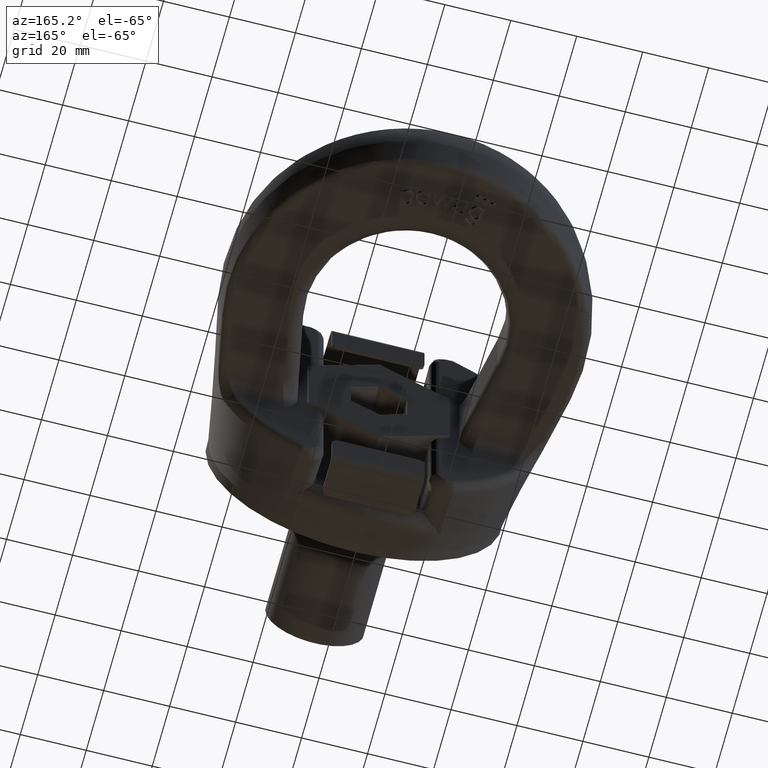
[diagram: clean part render]
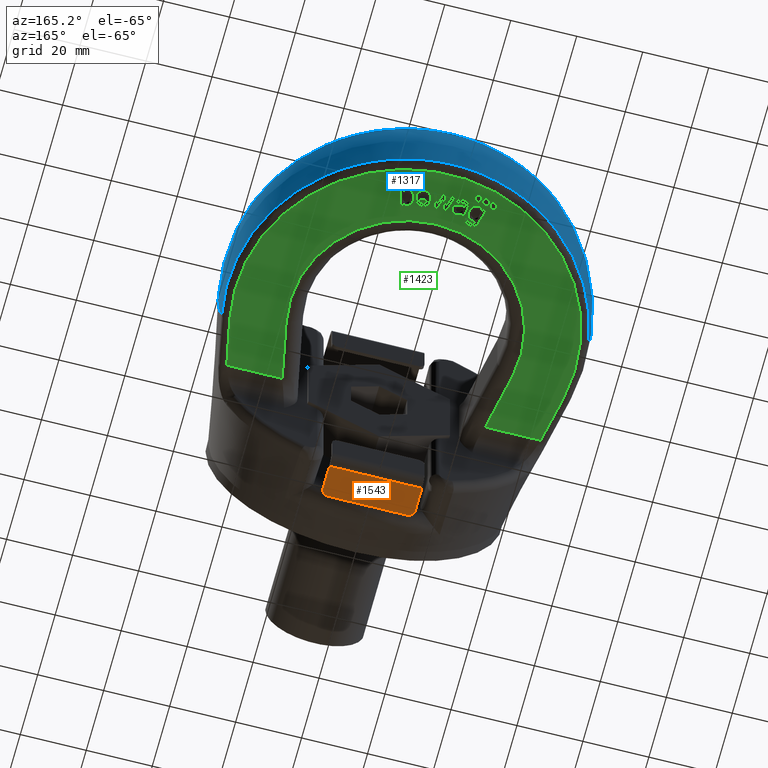
[diagram: same view with three faces highlighted in distinct colors, each labeled with its STEP entity id]
A machine part, auxiliary view with three faces highlighted in distinct colors.
Their STEP definitions:

[orange] entity #1543 — the highlighted planar face has unit normal (-0, 0, 1).
#1304=FACE_OUTER_BOUND('',#2081,.T.);
#1543=ADVANCED_FACE('',(#1304),#1665,.F.);
#1665=PLANE('',#5377);
#1754=CIRCLE('',#5375,2.);
#1755=CIRCLE('',#5376,2.);
#2081=EDGE_LOOP('',(#3856,#3857,#3858,#3859,#3860,#3861));
#2342=LINE('',#9556,#2678);
#2350=LINE('',#9578,#2686);
#2354=LINE('',#9587,#2690);
#2365=LINE('',#9621,#2701);
#2678=VECTOR('',#6174,1.);
#2686=VECTOR('',#6188,1.);
#2690=VECTOR('',#6194,1.);
#2701=VECTOR('',#6233,1.);
#3856=ORIENTED_EDGE('',*,*,#4828,.F.);
#3857=ORIENTED_EDGE('',*,*,#4852,.T.);
#3858=ORIENTED_EDGE('',*,*,#4818,.F.);
#3859=ORIENTED_EDGE('',*,*,#4851,.T.);
#3860=ORIENTED_EDGE('',*,*,#4832,.T.);
#3861=ORIENTED_EDGE('',*,*,#4853,.T.);
#4242=VERTEX_POINT('',#9557);
#4243=VERTEX_POINT('',#9558);
#4252=VERTEX_POINT('',#9577);
#4253=VERTEX_POINT('',#9579);
#4256=VERTEX_POINT('',#9586);
#4257=VERTEX_POINT('',#9588);
#4818=EDGE_CURVE('',#4242,#4243,#2342,.T.);
#4828=EDGE_CURVE('',#4252,#4253,#2350,.T.);
#4832=EDGE_CURVE('',#4257,#4256,#2354,.T.);
#4851=EDGE_CURVE('',#4242,#4257,#2365,.T.);
#4852=EDGE_CURVE('',#4252,#4243,#1754,.T.);
#4853=EDGE_CURVE('',#4256,#4253,#1755,.T.);
#5375=AXIS2_PLACEMENT_3D('',#9623,#6236,#6237);
#5376=AXIS2_PLACEMENT_3D('',#9624,#6238,#6239);
#5377=AXIS2_PLACEMENT_3D('',#9625,#6240,#6241);
#6174=DIRECTION('',(0.,-1.,0.));
#6188=DIRECTION('',(1.,0.,2.34291072916505E-15));
#6194=DIRECTION('',(0.,-1.,0.));
#6233=DIRECTION('',(1.,0.,2.34291072916505E-15));
#6236=DIRECTION('',(2.34291072916505E-15,0.,-1.));
#6237=DIRECTION('',(1.,0.,3.46944695195361E-15));
#6238=DIRECTION('',(2.34291072916505E-15,0.,-1.));
#6239=DIRECTION('',(1.,0.,3.46944695195361E-15));
#6240=DIRECTION('',(-2.34291072916505E-15,0.,1.));
#6241=DIRECTION('',(1.,0.,2.34534613952064E-15));
#9556=CARTESIAN_POINT('',(-13.9999999999999,25.,-45.));
#9557=CARTESIAN_POINT('',(-13.9999999999999,25.,-45.));
#9558=CARTESIAN_POINT('',(-13.9999999999999,17.5,-45.));
#9577=CARTESIAN_POINT('',(-11.9999999999999,15.5,-45.));
#9578=CARTESIAN_POINT('',(-13.9999999999999,15.5,-45.));
#9579=CARTESIAN_POINT('',(12.0000000000001,15.5,-45.));
#9586=CARTESIAN_POINT('',(14.0000000000001,17.5,-45.));
#9587=CARTESIAN_POINT('',(14.0000000000001,25.,-45.));
#9588=CARTESIAN_POINT('',(14.0000000000001,25.,-45.));
#9621=CARTESIAN_POINT('',(-13.9999999999999,25.,-45.));
#9623=CARTESIAN_POINT('',(-11.9999999999999,17.5,-45.));
#9624=CARTESIAN_POINT('',(12.0000000000001,17.5,-45.));
#9625=CARTESIAN_POINT('',(-13.9999999999999,25.,-45.));

[blue] entity #1317 — the highlighted spherical surface has radius 55 mm.
#1089=SPHERICAL_SURFACE('',#5146,55.);
#1096=FACE_OUTER_BOUND('',#1830,.T.);
#1317=ADVANCED_FACE('',(#1096),#1089,.T.);
#1676=CIRCLE('',#5134,53.9571770009978);
#1680=CIRCLE('',#5138,53.9571770009978);
#1685=CIRCLE('',#5144,53.9930498592789);
#1686=CIRCLE('',#5145,53.9930498592789);
#1830=EDGE_LOOP('',(#2831,#2832,#2833,#2834));
#2831=ORIENTED_EDGE('',*,*,#4372,.F.);
#2832=ORIENTED_EDGE('',*,*,#4393,.T.);
#2833=ORIENTED_EDGE('',*,*,#4382,.F.);
#2834=ORIENTED_EDGE('',*,*,#4394,.T.);
#3982=VERTEX_POINT('',#6756);
#3983=VERTEX_POINT('',#6757);
#3992=VERTEX_POINT('',#6809);
#3993=VERTEX_POINT('',#6811);
#4372=EDGE_CURVE('',#3982,#3983,#1676,.T.);
#4382=EDGE_CURVE('',#3992,#3993,#1680,.T.);
#4393=EDGE_CURVE('',#3982,#3993,#1685,.T.);
#4394=EDGE_CURVE('',#3992,#3983,#1686,.T.);
#5134=AXIS2_PLACEMENT_3D('',#6755,#5481,#5482);
#5138=AXIS2_PLACEMENT_3D('',#6810,#5489,#5490);
#5144=AXIS2_PLACEMENT_3D('',#6866,#5501,#5502);
#5145=AXIS2_PLACEMENT_3D('',#6867,#5503,#5504);
#5146=AXIS2_PLACEMENT_3D('',#6868,#5505,#5506);
#5481=DIRECTION('',(-1.11757456888336E-15,-1.,0.));
#5482=DIRECTION('',(1.,-1.15740015705436E-15,0.));
#5489=DIRECTION('',(-1.11757456888336E-15,-1.,0.));
#5490=DIRECTION('',(1.,-1.15740015705436E-15,0.));
#5501=DIRECTION('',(0.,-1.26490253456642E-16,-1.));
#5502=DIRECTION('',(0.,1.,-1.28514575894341E-16));
#5503=DIRECTION('',(-2.34291072916505E-15,-1.26490253456642E-16,1.));
#5504=DIRECTION('',(-2.85359682315669E-31,1.,1.28514575894341E-16));
#5505=DIRECTION('',(-1.05634222892599E-15,-1.,0.));
#5506=DIRECTION('',(1.,-1.13545536609391E-15,0.));
#6755=CARTESIAN_POINT('',(-7.33792883197414E-14,48.3405886615161,0.));
#6756=CARTESIAN_POINT('',(-52.9303918653886,48.3405886615161,10.4761904761905));
#6757=CARTESIAN_POINT('',(-52.9303918653884,48.340588661516,-10.4761904761906));
#6809=CARTESIAN_POINT('',(52.9303918653886,48.3405886615161,-10.4761904761904));
#6810=CARTESIAN_POINT('',(-7.33792883197414E-14,48.3405886615161,0.));
#6811=CARTESIAN_POINT('',(52.9303918653884,48.340588661516,10.4761904761905));
#6866=CARTESIAN_POINT('',(-1.38050658413677E-30,59.,10.4761904761905));
#6867=CARTESIAN_POINT('',(2.45447790674434E-14,59.,-10.4761904761905));
#6868=CARTESIAN_POINT('',(-1.38050658413677E-30,59.,0.));

[green] entity #1423 — the highlighted planar face has unit normal (-0, -0, 1).
#1423=ADVANCED_FACE('',(#1789,#1790,#1791,#1792,#1793,#1794,#1795,#1796,
#1797),#1605,.F.);
#1605=PLANE('',#5249);
#1709=CIRCLE('',#5244,0.9375);
#1710=CIRCLE('',#5245,0.9375);
#1711=CIRCLE('',#5246,0.9375);
#1712=CIRCLE('',#5247,35.);
#1713=CIRCLE('',#5248,51.5388203202208);
#1789=FACE_BOUND('',#1946,.T.);
#1790=FACE_BOUND('',#1947,.T.);
#1791=FACE_BOUND('',#1948,.T.);
#1792=FACE_BOUND('',#1949,.T.);
#1793=FACE_BOUND('',#1950,.T.);
#1794=FACE_BOUND('',#1951,.T.);
#1795=FACE_BOUND('',#1952,.T.);
#1796=FACE_BOUND('',#1953,.T.);
#1797=FACE_BOUND('',#1954,.T.);
#1946=EDGE_LOOP('',(#3273,#3274,#3275,#3276,#3277,#3278,#3279));
#1947=EDGE_LOOP('',(#3280,#3281,#3282,#3283,#3284,#3285,#3286,#3287,#3288,
#3289,#3290,#3291,#3292,#3293,#3294));
#1948=EDGE_LOOP('',(#3295,#3296,#3297,#3298,#3299));
#1949=EDGE_LOOP('',(#3300));
#1950=EDGE_LOOP('',(#3301));
#1951=EDGE_LOOP('',(#3302));
#1952=EDGE_LOOP('',(#3303,#3304,#3305,#3306,#3307,#3308,#3309,#3310));
#1953=EDGE_LOOP('',(#3311,#3312,#3313,#3314,#3315,#3316));
#1954=EDGE_LOOP('',(#3317,#3318,#3319,#3320,#3321,#3322,#3323,#3324,#3325));
#2226=LINE('',#8062,#2534);
#2227=LINE('',#8094,#2535);
#2228=LINE('',#8096,#2536);
#2229=LINE('',#8097,#2537);
#2230=LINE('',#8100,#2538);
#2231=LINE('',#8102,#2539);
#2232=LINE('',#8104,#2540);
#2233=LINE('',#8118,#2541);
#2234=LINE('',#8120,#2542);
#2235=LINE('',#8136,#2543);
#2236=LINE('',#8138,#2544);
#2237=LINE('',#8140,#2545);
#2238=LINE('',#8142,#2546);
#2239=LINE('',#8144,#2547);
#2240=LINE('',#8160,#2548);
#2241=LINE('',#8183,#2549);
#2242=LINE('',#8193,#2550);
#2243=LINE('',#8195,#2551);
#2244=LINE('',#8209,#2552);
#2245=LINE('',#8211,#2553);
#2246=LINE('',#8212,#2554);
#2247=LINE('',#8215,#2555);
#2248=LINE('',#8217,#2556);
#2249=LINE('',#8219,#2557);
#2250=LINE('',#8221,#2558);
#2251=LINE('',#8245,#2559);
#2252=LINE('',#8290,#2560);
#2534=VECTOR('',#5806,1.);
#2535=VECTOR('',#5807,1.);
#2536=VECTOR('',#5808,1.);
#2537=VECTOR('',#5809,1.);
#2538=VECTOR('',#5810,1.);
#2539=VECTOR('',#5811,1.);
#2540=VECTOR('',#5812,1.);
#2541=VECTOR('',#5813,1.);
#2542=VECTOR('',#5814,1.);
#2543=VECTOR('',#5815,1.);
#2544=VECTOR('',#5816,1.);
#2545=VECTOR('',#5817,1.);
#2546=VECTOR('',#5818,1.);
#2547=VECTOR('',#5819,1.);
#2548=VECTOR('',#5820,1.);
#2549=VECTOR('',#5821,1.);
#2550=VECTOR('',#5830,1.);
#2551=VECTOR('',#5831,1.);
#2552=VECTOR('',#5834,1.);
#2553=VECTOR('',#5835,1.);
#2554=VECTOR('',#5836,1.);
#2555=VECTOR('',#5837,1.);
#2556=VECTOR('',#5838,1.);
#2557=VECTOR('',#5839,1.);
#2558=VECTOR('',#5840,1.);
#2559=VECTOR('',#5841,1.);
#2560=VECTOR('',#5842,1.);
#3273=ORIENTED_EDGE('',*,*,#4570,.T.);
#3274=ORIENTED_EDGE('',*,*,#4571,.T.);
#3275=ORIENTED_EDGE('',*,*,#4572,.T.);
#3276=ORIENTED_EDGE('',*,*,#4573,.T.);
#3277=ORIENTED_EDGE('',*,*,#4574,.T.);
#3278=ORIENTED_EDGE('',*,*,#4575,.T.);
#3279=ORIENTED_EDGE('',*,*,#4576,.T.);
#3280=ORIENTED_EDGE('',*,*,#4577,.T.);
#3281=ORIENTED_EDGE('',*,*,#4578,.T.);
#3282=ORIENTED_EDGE('',*,*,#4579,.T.);
#3283=ORIENTED_EDGE('',*,*,#4580,.T.);
#3284=ORIENTED_EDGE('',*,*,#4581,.T.);
#3285=ORIENTED_EDGE('',*,*,#4582,.T.);
#3286=ORIENTED_EDGE('',*,*,#4583,.T.);
#3287=ORIENTED_EDGE('',*,*,#4584,.T.);
#3288=ORIENTED_EDGE('',*,*,#4585,.T.);
#3289=ORIENTED_EDGE('',*,*,#4586,.T.);
#3290=ORIENTED_EDGE('',*,*,#4587,.T.);
#3291=ORIENTED_EDGE('',*,*,#4588,.T.);
#3292=ORIENTED_EDGE('',*,*,#4589,.T.);
#3293=ORIENTED_EDGE('',*,*,#4590,.T.);
#3294=ORIENTED_EDGE('',*,*,#4591,.T.);
#3295=ORIENTED_EDGE('',*,*,#4592,.T.);
#3296=ORIENTED_EDGE('',*,*,#4593,.T.);
#3297=ORIENTED_EDGE('',*,*,#4594,.T.);
#3298=ORIENTED_EDGE('',*,*,#4595,.T.);
#3299=ORIENTED_EDGE('',*,*,#4596,.T.);
#3300=ORIENTED_EDGE('',*,*,#4597,.F.);
#3301=ORIENTED_EDGE('',*,*,#4598,.F.);
#3302=ORIENTED_EDGE('',*,*,#4599,.F.);
#3303=ORIENTED_EDGE('',*,*,#4600,.T.);
#3304=ORIENTED_EDGE('',*,*,#4601,.T.);
#3305=ORIENTED_EDGE('',*,*,#4602,.T.);
#3306=ORIENTED_EDGE('',*,*,#4603,.T.);
#3307=ORIENTED_EDGE('',*,*,#4604,.T.);
#3308=ORIENTED_EDGE('',*,*,#4605,.T.);
#3309=ORIENTED_EDGE('',*,*,#4606,.T.);
#3310=ORIENTED_EDGE('',*,*,#4607,.T.);
#3311=ORIENTED_EDGE('',*,*,#4608,.T.);
#3312=ORIENTED_EDGE('',*,*,#4609,.T.);
#3313=ORIENTED_EDGE('',*,*,#4610,.T.);
#3314=ORIENTED_EDGE('',*,*,#4611,.T.);
#3315=ORIENTED_EDGE('',*,*,#4612,.T.);
#3316=ORIENTED_EDGE('',*,*,#4613,.T.);
#3317=ORIENTED_EDGE('',*,*,#4614,.T.);
#3318=ORIENTED_EDGE('',*,*,#4615,.T.);
#3319=ORIENTED_EDGE('',*,*,#4616,.T.);
#3320=ORIENTED_EDGE('',*,*,#4617,.T.);
#3321=ORIENTED_EDGE('',*,*,#4618,.T.);
#3322=ORIENTED_EDGE('',*,*,#4619,.T.);
#3323=ORIENTED_EDGE('',*,*,#4620,.T.);
#3324=ORIENTED_EDGE('',*,*,#4621,.T.);
#3325=ORIENTED_EDGE('',*,*,#4622,.T.);
#4087=VERTEX_POINT('',#8055);
#4088=VERTEX_POINT('',#8056);
#4089=VERTEX_POINT('',#8061);
#4090=VERTEX_POINT('',#8063);
#4091=VERTEX_POINT('',#8076);
#4092=VERTEX_POINT('',#8093);
#4093=VERTEX_POINT('',#8095);
#4094=VERTEX_POINT('',#8098);
#4095=VERTEX_POINT('',#8099);
#4096=VERTEX_POINT('',#8101);
#4097=VERTEX_POINT('',#8103);
#4098=VERTEX_POINT('',#8105);
#4099=VERTEX_POINT('',#8112);
#4100=VERTEX_POINT('',#8117);
#4101=VERTEX_POINT('',#8119);
#4102=VERTEX_POINT('',#8121);
#4103=VERTEX_POINT('',#8128);
#4104=VERTEX_POINT('',#8135);
#4105=VERTEX_POINT('',#8137);
#4106=VERTEX_POINT('',#8139);
#4107=VERTEX_POINT('',#8141);
#4108=VERTEX_POINT('',#8143);
#4109=VERTEX_POINT('',#8153);
#4110=VERTEX_POINT('',#8154);
#4111=VERTEX_POINT('',#8159);
#4112=VERTEX_POINT('',#8161);
#4113=VERTEX_POINT('',#8182);
#4114=VERTEX_POINT('',#8185);
#4115=VERTEX_POINT('',#8187);
#4116=VERTEX_POINT('',#8189);
#4117=VERTEX_POINT('',#8191);
#4118=VERTEX_POINT('',#8192);
#4119=VERTEX_POINT('',#8194);
#4120=VERTEX_POINT('',#8196);
#4121=VERTEX_POINT('',#8201);
#4122=VERTEX_POINT('',#8203);
#4123=VERTEX_POINT('',#8208);
#4124=VERTEX_POINT('',#8210);
#4125=VERTEX_POINT('',#8213);
#4126=VERTEX_POINT('',#8214);
#4127=VERTEX_POINT('',#8216);
#4128=VERTEX_POINT('',#8218);
#4129=VERTEX_POINT('',#8220);
#4130=VERTEX_POINT('',#8222);
#4131=VERTEX_POINT('',#8246);
#4132=VERTEX_POINT('',#8247);
#4133=VERTEX_POINT('',#8252);
#4134=VERTEX_POINT('',#8269);
#4135=VERTEX_POINT('',#8276);
#4136=VERTEX_POINT('',#8289);
#4137=VERTEX_POINT('',#8291);
#4138=VERTEX_POINT('',#8296);
#4139=VERTEX_POINT('',#8309);
#4570=EDGE_CURVE('',#4087,#4088,#4995,.T.);
#4571=EDGE_CURVE('',#4088,#4089,#4996,.T.);
#4572=EDGE_CURVE('',#4089,#4090,#2226,.T.);
#4573=EDGE_CURVE('',#4090,#4091,#4997,.T.);
#4574=EDGE_CURVE('',#4091,#4092,#4998,.T.);
#4575=EDGE_CURVE('',#4092,#4093,#2227,.T.);
#4576=EDGE_CURVE('',#4093,#4087,#2228,.T.);
#4577=EDGE_CURVE('',#4094,#4095,#2229,.T.);
#4578=EDGE_CURVE('',#4095,#4096,#2230,.T.);
#4579=EDGE_CURVE('',#4096,#4097,#2231,.T.);
#4580=EDGE_CURVE('',#4097,#4098,#2232,.T.);
#4581=EDGE_CURVE('',#4098,#4099,#4999,.T.);
#4582=EDGE_CURVE('',#4099,#4100,#5000,.T.);
#4583=EDGE_CURVE('',#4100,#4101,#2233,.T.);
#4584=EDGE_CURVE('',#4101,#4102,#2234,.T.);
#4585=EDGE_CURVE('',#4102,#4103,#5001,.T.);
#4586=EDGE_CURVE('',#4103,#4104,#5002,.T.);
#4587=EDGE_CURVE('',#4104,#4105,#2235,.T.);
#4588=EDGE_CURVE('',#4105,#4106,#2236,.T.);
#4589=EDGE_CURVE('',#4106,#4107,#2237,.T.);
#4590=EDGE_CURVE('',#4107,#4108,#2238,.T.);
#4591=EDGE_CURVE('',#4108,#4094,#2239,.T.);
#4592=EDGE_CURVE('',#4109,#4110,#5003,.T.);
#4593=EDGE_CURVE('',#4110,#4111,#5004,.T.);
#4594=EDGE_CURVE('',#4111,#4112,#2240,.T.);
#4595=EDGE_CURVE('',#4112,#4113,#5005,.T.);
#4596=EDGE_CURVE('',#4113,#4109,#2241,.T.);
#4597=EDGE_CURVE('',#4114,#4114,#1709,.T.);
#4598=EDGE_CURVE('',#4115,#4115,#1710,.T.);
#4599=EDGE_CURVE('',#4116,#4116,#1711,.T.);
#4600=EDGE_CURVE('',#4117,#4118,#1712,.T.);
#4601=EDGE_CURVE('',#4118,#4119,#2242,.T.);
#4602=EDGE_CURVE('',#4119,#4120,#2243,.T.);
#4603=EDGE_CURVE('',#4120,#4121,#5006,.T.);
#4604=EDGE_CURVE('',#4121,#4122,#1713,.T.);
#4605=EDGE_CURVE('',#4122,#4123,#5007,.T.);
#4606=EDGE_CURVE('',#4123,#4124,#2244,.T.);
#4607=EDGE_CURVE('',#4124,#4117,#2245,.T.);
#4608=EDGE_CURVE('',#4125,#4126,#2246,.T.);
#4609=EDGE_CURVE('',#4126,#4127,#2247,.T.);
#4610=EDGE_CURVE('',#4127,#4128,#2248,.T.);
#4611=EDGE_CURVE('',#4128,#4129,#2249,.T.);
#4612=EDGE_CURVE('',#4129,#4130,#2250,.T.);
#4613=EDGE_CURVE('',#4130,#4125,#5008,.T.);
#4614=EDGE_CURVE('',#4131,#4132,#2251,.T.);
#4615=EDGE_CURVE('',#4132,#4133,#5009,.T.);
#4616=EDGE_CURVE('',#4133,#4134,#5010,.T.);
#4617=EDGE_CURVE('',#4134,#4135,#5011,.T.);
#4618=EDGE_CURVE('',#4135,#4136,#5012,.T.);
#4619=EDGE_CURVE('',#4136,#4137,#2252,.T.);
#4620=EDGE_CURVE('',#4137,#4138,#5013,.T.);
#4621=EDGE_CURVE('',#4138,#4139,#5014,.T.);
#4622=EDGE_CURVE('',#4139,#4131,#5015,.T.);
#4995=B_SPLINE_CURVE_WITH_KNOTS('',3,(#8043,#8044,#8045,#8046,#8047,#8048,
#8049,#8050,#8051,#8052,#8053,#8054),.UNSPECIFIED.,.F.,.F.,(4,2,2,2,2,4),
(0.,0.305645754892095,0.470829306249219,0.636012857606339,0.802206343843957,
1.),.UNSPECIFIED.);
#4996=B_SPLINE_CURVE_WITH_KNOTS('',3,(#8057,#8058,#8059,#8060),
 .UNSPECIFIED.,.F.,.F.,(4,4),(0.,1.),.UNSPECIFIED.);
#4997=B_SPLINE_CURVE_WITH_KNOTS('',3,(#8064,#8065,#8066,#8067,#8068,#8069,
#8070,#8071,#8072,#8073,#8074,#8075),.UNSPECIFIED.,.F.,.F.,(4,2,2,2,2,4),
(0.,0.163304651309281,0.382303784248523,0.619375661168188,0.856447538087858,
1.),.UNSPECIFIED.);
#4998=B_SPLINE_CURVE_WITH_KNOTS('',3,(#8077,#8078,#8079,#8080,#8081,#8082,
#8083,#8084,#8085,#8086,#8087,#8088,#8089,#8090,#8091,#8092),
 .UNSPECIFIED.,.F.,.F.,(4,2,2,2,2,2,2,4),(0.,0.139503666745455,0.312880428291723,
0.486257189837992,0.605370995480464,0.72385410568908,0.842337215897697,
1.),.UNSPECIFIED.);
#4999=B_SPLINE_CURVE_WITH_KNOTS('',3,(#8106,#8107,#8108,#8109,#8110,#8111),
 .UNSPECIFIED.,.F.,.F.,(4,2,4),(0.,0.728909607654957,1.),.UNSPECIFIED.);
#5000=B_SPLINE_CURVE_WITH_KNOTS('',3,(#8113,#8114,#8115,#8116),
 .UNSPECIFIED.,.F.,.F.,(4,4),(0.,1.),.UNSPECIFIED.);
#5001=B_SPLINE_CURVE_WITH_KNOTS('',3,(#8122,#8123,#8124,#8125,#8126,#8127),
 .UNSPECIFIED.,.F.,.F.,(4,2,4),(0.,0.752082276025133,1.),.UNSPECIFIED.);
#5002=B_SPLINE_CURVE_WITH_KNOTS('',3,(#8129,#8130,#8131,#8132,#8133,#8134),
 .UNSPECIFIED.,.F.,.F.,(4,2,4),(0.,0.250451922487265,1.),.UNSPECIFIED.);
#5003=B_SPLINE_CURVE_WITH_KNOTS('',3,(#8145,#8146,#8147,#8148,#8149,#8150,
#8151,#8152),.UNSPECIFIED.,.F.,.F.,(4,2,2,4),(0.,0.363477968613222,0.728087675912445,
1.),.UNSPECIFIED.);
#5004=B_SPLINE_CURVE_WITH_KNOTS('',3,(#8155,#8156,#8157,#8158),
 .UNSPECIFIED.,.F.,.F.,(4,4),(0.,1.),.UNSPECIFIED.);
#5005=B_SPLINE_CURVE_WITH_KNOTS('',3,(#8162,#8163,#8164,#8165,#8166,#8167,
#8168,#8169,#8170,#8171,#8172,#8173,#8174,#8175,#8176,#8177,#8178,#8179,
#8180,#8181),.UNSPECIFIED.,.F.,.F.,(4,2,2,2,2,2,2,2,2,4),(0.,0.102921203122037,
0.206156274885321,0.336063021724224,0.465707475917722,0.59957029629973,
0.733433116681741,0.862845255056165,0.992257393430591,1.),.UNSPECIFIED.);
#5006=B_SPLINE_CURVE_WITH_KNOTS('',3,(#8197,#8198,#8199,#8200),
 .UNSPECIFIED.,.F.,.F.,(4,4),(0.,1.),.UNSPECIFIED.);
#5007=B_SPLINE_CURVE_WITH_KNOTS('',3,(#8204,#8205,#8206,#8207),
 .UNSPECIFIED.,.F.,.F.,(4,4),(0.,1.),.UNSPECIFIED.);
#5008=B_SPLINE_CURVE_WITH_KNOTS('',3,(#8223,#8224,#8225,#8226,#8227,#8228,
#8229,#8230,#8231,#8232,#8233,#8234,#8235,#8236,#8237,#8238,#8239,#8240,
#8241,#8242,#8243,#8244),.UNSPECIFIED.,.F.,.F.,(4,2,2,2,2,2,2,2,2,2,4),
(0.,0.0830854503763883,0.165678296755073,0.273272220956495,0.380460889370519,
0.487248686046679,0.601946689884037,0.717055250849192,0.83190951462342,
0.915821305508702,1.),.UNSPECIFIED.);
#5009=B_SPLINE_CURVE_WITH_KNOTS('',3,(#8248,#8249,#8250,#8251),
 .UNSPECIFIED.,.F.,.F.,(4,4),(0.,1.),.UNSPECIFIED.);
#5010=B_SPLINE_CURVE_WITH_KNOTS('',3,(#8253,#8254,#8255,#8256,#8257,#8258,
#8259,#8260,#8261,#8262,#8263,#8264,#8265,#8266,#8267,#8268),
 .UNSPECIFIED.,.F.,.F.,(4,2,2,2,2,2,2,4),(0.,0.121639465164563,0.24393090499119,
0.445161792748233,0.646392680505275,0.763565096161275,0.881519242448373,
1.),.UNSPECIFIED.);
#5011=B_SPLINE_CURVE_WITH_KNOTS('',3,(#8270,#8271,#8272,#8273,#8274,#8275),
 .UNSPECIFIED.,.F.,.F.,(4,2,4),(0.,0.329344693449402,1.),.UNSPECIFIED.);
#5012=B_SPLINE_CURVE_WITH_KNOTS('',3,(#8277,#8278,#8279,#8280,#8281,#8282,
#8283,#8284,#8285,#8286,#8287,#8288),.UNSPECIFIED.,.F.,.F.,(4,2,2,2,2,4),
(0.,0.0173977322142851,0.217983350684944,0.49067503531642,0.745337517658208,
1.),.UNSPECIFIED.);
#5013=B_SPLINE_CURVE_WITH_KNOTS('',3,(#8292,#8293,#8294,#8295),
 .UNSPECIFIED.,.F.,.F.,(4,4),(0.,1.),.UNSPECIFIED.);
#5014=B_SPLINE_CURVE_WITH_KNOTS('',3,(#8297,#8298,#8299,#8300,#8301,#8302,
#8303,#8304,#8305,#8306,#8307,#8308),.UNSPECIFIED.,.F.,.F.,(4,2,2,2,2,4),
(0.,0.201730292707491,0.402155128097313,0.601755169925864,0.800199545078052,
1.),.UNSPECIFIED.);
#5015=B_SPLINE_CURVE_WITH_KNOTS('',3,(#8310,#8311,#8312,#8313,#8314,#8315,
#8316,#8317,#8318,#8319),.UNSPECIFIED.,.F.,.F.,(4,2,2,2,4),(0.,0.161403604805111,
0.323059797411175,0.661780038481065,1.),.UNSPECIFIED.);
#5244=AXIS2_PLACEMENT_3D('',#8184,#5822,#5823);
#5245=AXIS2_PLACEMENT_3D('',#8186,#5824,#5825);
#5246=AXIS2_PLACEMENT_3D('',#8188,#5826,#5827);
#5247=AXIS2_PLACEMENT_3D('',#8190,#5828,#5829);
#5248=AXIS2_PLACEMENT_3D('',#8202,#5832,#5833);
#5249=AXIS2_PLACEMENT_3D('',#8320,#5843,#5844);
#5806=DIRECTION('',(-0.923317757456574,-0.384036871622196,-2.21182800160181E-15));
#5807=DIRECTION('',(-0.247367797191725,0.968921654682417,-4.57001520410008E-16));
#5808=DIRECTION('',(-0.968921654682422,-0.247367797191705,-2.30138655583959E-15));
#5809=DIRECTION('',(0.258678524178697,-0.965963467802345,4.83875725830674E-16));
#5810=DIRECTION('',(0.999999995420965,9.56978091464592E-5,2.34292282327691E-15));
#5811=DIRECTION('',(0.297316417901246,0.954779004611209,8.17356063746101E-16));
#5812=DIRECTION('',(-0.999999995420965,-9.56978091273384E-5,-2.34292282327691E-15));
#5813=DIRECTION('',(-0.266690394584402,0.963782254161393,-5.02922725231167E-16));
#5814=DIRECTION('',(-0.999999995420965,-9.56978091537465E-5,-2.34292282327691E-15));
#5815=DIRECTION('',(-0.999999995420965,-9.5697809128922E-5,-2.34292282327691E-15));
#5816=DIRECTION('',(0.303111828997476,-0.952954993229903,5.89624437668605E-16));
#5817=DIRECTION('',(0.999999995420965,9.56978091354378E-5,2.34292282327691E-15));
#5818=DIRECTION('',(0.260550789699002,0.965460142101799,7.3256853875496E-16));
#5819=DIRECTION('',(0.226099188397929,0.974104284461268,6.52944912187723E-16));
#5820=DIRECTION('',(-0.999912445157426,0.0132326119605001,-2.34103179954421E-15));
#5821=DIRECTION('',(0.991099761245478,-0.133121235192426,2.305219725515E-15));
#5822=DIRECTION('',(2.34291072916505E-15,1.26490253456642E-16,-1.));
#5823=DIRECTION('',(0.,0.999999999999994,0.));
#5824=DIRECTION('',(2.34291072916505E-15,1.26490253456642E-16,-1.));
#5825=DIRECTION('',(0.,0.999999999999994,0.));
#5826=DIRECTION('',(2.34291072916505E-15,1.26490253456642E-16,-1.));
#5827=DIRECTION('',(0.,0.999999999999994,0.));
#5828=DIRECTION('',(-2.34291072916505E-15,-1.26490253456642E-16,1.));
#5829=DIRECTION('',(-3.52170046973666E-31,1.,1.48690583655155E-16));
#5830=DIRECTION('',(0.193807478881527,-0.981039581836323,3.29981676306483E-16));
#5831=DIRECTION('',(-1.,-8.206214337158E-16,-2.34291072916505E-15));
#5832=DIRECTION('',(2.34291072916505E-15,1.26490253456642E-16,-1.));
#5833=DIRECTION('',(-2.39158590893132E-31,1.,1.34634317603595E-16));
#5834=DIRECTION('',(-1.,8.206214337158E-16,-2.34291072916505E-15));
#5835=DIRECTION('',(0.193807478881527,0.981039581836323,5.78165567021432E-16));
#5836=DIRECTION('',(-0.247182345302588,-0.968968982047781,-7.01691301000461E-16));
#5837=DIRECTION('',(0.968968982047781,-0.247182345302588,2.23894166676055E-15));
#5838=DIRECTION('',(0.247182345302589,0.96896898204778,7.01691301000463E-16));
#5839=DIRECTION('',(-0.968968982047783,0.247182345302581,-2.23894166676055E-15));
#5840=DIRECTION('',(-0.24718234530259,-0.96896898204778,-7.01691301000466E-16));
#5841=DIRECTION('',(0.991074264271357,0.133310924904859,2.33886105984047E-15));
#5842=DIRECTION('',(0.964559790778294,0.263864378068987,2.29325375479579E-15));
#5843=DIRECTION('',(-2.34291072916505E-15,-1.26490253456642E-16,1.));
#5844=DIRECTION('',(0.,1.,1.26634813746307E-16));
#8043=CARTESIAN_POINT('',(-12.9361312238876,102.083665701195,-12.5));
#8044=CARTESIAN_POINT('',(-12.6133950341517,100.819531539291,-12.5));
#8045=CARTESIAN_POINT('',(-12.2906588444157,99.5553973773881,-12.5));
#8046=CARTESIAN_POINT('',(-11.7935027286093,97.608073061809,-12.5));
#8047=CARTESIAN_POINT('',(-11.5991699822518,97.1428371525171,-12.5));
#8048=CARTESIAN_POINT('',(-11.1698878288902,96.645175454657,-12.5));
#8049=CARTESIAN_POINT('',(-10.8883084007194,96.4761401383114,-12.5));
#8050=CARTESIAN_POINT('',(-10.1907288745621,96.3033306368806,-12.5));
#8051=CARTESIAN_POINT('',(-9.79160842375197,96.3171878327676,-12.5));
#8052=CARTESIAN_POINT('',(-8.81114823436487,96.5675014428627,-12.5));
#8053=CARTESIAN_POINT('',(-8.41087639954167,96.7951037622214,-12.5));
#8054=CARTESIAN_POINT('',(-8.14312299358149,97.1142858925592,-12.5));
#8055=CARTESIAN_POINT('',(-12.9361312238876,102.083665701195,-12.5));
#8056=CARTESIAN_POINT('',(-8.14312299358149,97.1142858925592,-12.5));
#8057=CARTESIAN_POINT('',(-8.14312299358149,97.1142858925592,-12.5));
#8058=CARTESIAN_POINT('',(-7.87536958762131,97.433468022897,-12.5));
#8059=CARTESIAN_POINT('',(-7.80831113043786,97.8284745095958,-12.5));
#8060=CARTESIAN_POINT('',(-7.93997580943938,98.2981586020904,-12.5));
#8061=CARTESIAN_POINT('',(-7.93997580943938,98.2981586020904,-12.5));
#8062=CARTESIAN_POINT('',(-85.8341807000286,65.8995108753492,-12.5000000000002));
#8063=CARTESIAN_POINT('',(-8.64881891024292,98.0033284802769,-12.5));
#8064=CARTESIAN_POINT('',(-8.64881891024292,98.0033284802769,-12.5));
#8065=CARTESIAN_POINT('',(-8.62181521354581,97.7725997454393,-12.5));
#8066=CARTESIAN_POINT('',(-8.66540699770487,97.5882040164713,-12.5));
#8067=CARTESIAN_POINT('',(-8.93272469611895,97.2649927602029,-12.5));
#8068=CARTESIAN_POINT('',(-9.17150874846373,97.130613583653,-12.5));
#8069=CARTESIAN_POINT('',(-9.84774254468087,96.9579696307096,-12.5));
#8070=CARTESIAN_POINT('',(-10.134692723238,96.9573176065717,-12.5));
#8071=CARTESIAN_POINT('',(-10.5865587281034,97.1356834659449,-12.5));
#8072=CARTESIAN_POINT('',(-10.7652542921919,97.2963319252344,-12.5));
#8073=CARTESIAN_POINT('',(-10.9731475394713,97.6671551267138,-12.5));
#8074=CARTESIAN_POINT('',(-11.0729033409316,97.98181188431,-12.5));
#8075=CARTESIAN_POINT('',(-11.1935453772271,98.4675113500908,-12.5));
#8076=CARTESIAN_POINT('',(-11.1935453772271,98.4675113500908,-12.5));
#8077=CARTESIAN_POINT('',(-11.1935453772271,98.4675113500908,-12.5));
#8078=CARTESIAN_POINT('',(-10.7644353515799,98.1678247385659,-12.5));
#8079=CARTESIAN_POINT('',(-10.3043726501683,98.0823102360776,-12.5));
#8080=CARTESIAN_POINT('',(-9.19780825635845,98.3648185227122,-12.5));
#8081=CARTESIAN_POINT('',(-8.77713628976422,98.7032391897207,-12.5));
#8082=CARTESIAN_POINT('',(-8.32790804169283,99.7453172626244,-12.5));
#8083=CARTESIAN_POINT('',(-8.29253055055801,100.31045265789,-12.5));
#8084=CARTESIAN_POINT('',(-8.55475370471846,101.337561664437,-12.5));
#8085=CARTESIAN_POINT('',(-8.73047452900125,101.703589246519,-12.5));
#8086=CARTESIAN_POINT('',(-9.21927591472675,102.332568959169,-12.5));
#8087=CARTESIAN_POINT('',(-9.51244185323587,102.550151841507,-12.5));
#8088=CARTESIAN_POINT('',(-10.1969128928392,102.784644233039,-12.5));
#8089=CARTESIAN_POINT('',(-10.565463982187,102.794512332851,-12.5));
#8090=CARTESIAN_POINT('',(-11.4876009770286,102.559088760655,-12.5));
#8091=CARTESIAN_POINT('',(-11.8676903248124,102.239279717088,-12.5));
#8092=CARTESIAN_POINT('',(-12.1025647594336,101.732122787029,-12.5));
#8093=CARTESIAN_POINT('',(-12.1025647594336,101.732122787029,-12.5));
#8094=CARTESIAN_POINT('',(-23.430154944213,146.101468959013,-12.5000000000001));
#8095=CARTESIAN_POINT('',(-12.2378291918965,102.261943722533,-12.5));
#8096=CARTESIAN_POINT('',(-98.8076742476848,80.1604747635212,-12.5000000000002));
#8097=CARTESIAN_POINT('',(-12.614340635074,150.079225022869,-12.5));
#8098=CARTESIAN_POINT('',(0.0202019016882926,102.899017227667,-12.5));
#8099=CARTESIAN_POINT('',(0.952727510787347,99.4167580256719,-12.5));
#8100=CARTESIAN_POINT('',(-109.997646421499,99.406140317914,-12.5000000000003));
#8101=CARTESIAN_POINT('',(1.76778574874189,99.41683602496,-12.5));
#8102=CARTESIAN_POINT('',(-1.13369807770998,90.0992347324697,-12.5));
#8103=CARTESIAN_POINT('',(3.17784243249098,103.944983264385,-12.5));
#8104=CARTESIAN_POINT('',(-109.998079742354,103.934152576538,-12.5000000000003));
#8105=CARTESIAN_POINT('',(2.37091850828847,103.944906043533,-12.5));
#8106=CARTESIAN_POINT('',(2.37091850828847,103.944906043533,-12.5));
#8107=CARTESIAN_POINT('',(2.12643019792692,103.073496098674,-12.5));
#8108=CARTESIAN_POINT('',(1.88194188756537,102.202086153815,-12.5));
#8109=CARTESIAN_POINT('',(1.54652538626816,101.006588199463,-12.5));
#8110=CARTESIAN_POINT('',(1.45530696871548,100.682581687893,-12.5));
#8111=CARTESIAN_POINT('',(1.36423366447131,100.358534427362,-12.5));
#8112=CARTESIAN_POINT('',(1.36423366447131,100.358534427362,-12.5));
#8113=CARTESIAN_POINT('',(1.36423366447131,100.358534427362,-12.5));
#8114=CARTESIAN_POINT('',(1.35284103495516,100.406499569104,-12.5));
#8115=CARTESIAN_POINT('',(1.27309492347374,100.718272445527,-12.5));
#8116=CARTESIAN_POINT('',(1.12662234578625,101.292254337932,-12.5));
#8117=CARTESIAN_POINT('',(1.12662234578625,101.292254337932,-12.5));
#8118=CARTESIAN_POINT('',(-12.6137268410252,150.947978657762,-12.5));
#8119=CARTESIAN_POINT('',(0.392653403791994,103.944716727896,-12.5));
#8120=CARTESIAN_POINT('',(-109.998079742354,103.934152576535,-12.5000000000003));
#8121=CARTESIAN_POINT('',(-0.40938993215929,103.944639974106,-12.5));
#8122=CARTESIAN_POINT('',(-0.40938993215929,103.944639974106,-12.5));
#8123=CARTESIAN_POINT('',(-0.639236069743761,103.068967765404,-12.5));
#8124=CARTESIAN_POINT('',(-0.869082207328232,102.193295556703,-12.5));
#8125=CARTESIAN_POINT('',(-1.17469522988109,101.028965221292,-12.5));
#8126=CARTESIAN_POINT('',(-1.25288283345265,100.740947914719,-12.5));
#8127=CARTESIAN_POINT('',(-1.32986007772262,100.452610198077,-12.5));
#8128=CARTESIAN_POINT('',(-1.32986007772262,100.452610198077,-12.5));
#8129=CARTESIAN_POINT('',(-1.32986007772262,100.452610198077,-12.5));
#8130=CARTESIAN_POINT('',(-1.41773856484491,100.744129887186,-12.5));
#8131=CARTESIAN_POINT('',(-1.50561705196719,101.035649576295,-12.5));
#8132=CARTESIAN_POINT('',(-1.85649671880926,102.199624227452,-12.5));
#8133=CARTESIAN_POINT('',(-2.11968147863285,103.072023838821,-12.5));
#8134=CARTESIAN_POINT('',(-2.38277444840454,103.94445112553,-12.5));
#8135=CARTESIAN_POINT('',(-2.38277444840454,103.94445112553,-12.5));
#8136=CARTESIAN_POINT('',(-109.998079742354,103.934152576537,-12.5000000000003));
#8137=CARTESIAN_POINT('',(-3.14251935284521,103.944378419607,-12.5));
#8138=CARTESIAN_POINT('',(-18.7533457073628,153.023343672086,-12.5));
#8139=CARTESIAN_POINT('',(-1.70231249787898,99.4165039441587,-12.5));
#8140=CARTESIAN_POINT('',(-109.997646421499,99.4061403179152,-12.5000000000003));
#8141=CARTESIAN_POINT('',(-0.890507985425248,99.4165816320724,-12.5));
#8142=CARTESIAN_POINT('',(-2.11359949849102,94.8844667711958,-12.5));
#8143=CARTESIAN_POINT('',(-0.158679250626372,102.128342648454,-12.5));
#8144=CARTESIAN_POINT('',(-0.956754746446199,98.689989926756,-12.5));
#8145=CARTESIAN_POINT('',(6.98170931109626,100.927764604249,-12.5));
#8146=CARTESIAN_POINT('',(6.88649188617454,100.438838570992,-12.5));
#8147=CARTESIAN_POINT('',(6.69394525267512,100.08075145041,-12.5));
#8148=CARTESIAN_POINT('',(6.11329100018677,99.6255474660199,-12.5));
#8149=CARTESIAN_POINT('',(5.77727561379915,99.5376104362244,-12.5));
#8150=CARTESIAN_POINT('',(5.11297369795166,99.6268372679081,-12.5));
#8151=CARTESIAN_POINT('',(4.88090703448359,99.7322163901957,-12.5));
#8152=CARTESIAN_POINT('',(4.69894078345354,99.9050748883034,-12.5));
#8153=CARTESIAN_POINT('',(6.98170931109626,100.927764604249,-12.5));
#8154=CARTESIAN_POINT('',(4.69894078345354,99.9050748883034,-12.5));
#8155=CARTESIAN_POINT('',(4.69894078345354,99.9050748883034,-12.5));
#8156=CARTESIAN_POINT('',(4.51879975984843,100.07930146046,-12.5));
#8157=CARTESIAN_POINT('',(4.39046190175364,100.333684560665,-12.5));
#8158=CARTESIAN_POINT('',(4.31596528072814,100.671176906997,-12.5));
#8159=CARTESIAN_POINT('',(4.31596528072814,100.671176906997,-12.5));
#8160=CARTESIAN_POINT('',(-110.288657278836,102.187828196372,-12.5000000000003));
#8161=CARTESIAN_POINT('',(3.50323967626943,100.68193233124,-12.5));
#8162=CARTESIAN_POINT('',(3.50323967626943,100.68193233124,-12.5));
#8163=CARTESIAN_POINT('',(3.56889315737902,100.205276534542,-12.5));
#8164=CARTESIAN_POINT('',(3.75479880439991,99.8173289810347,-12.5));
#8165=CARTESIAN_POINT('',(4.3680480895477,99.2179377997937,-12.5));
#8166=CARTESIAN_POINT('',(4.78704277137305,99.0333883735846,-12.5));
#8167=CARTESIAN_POINT('',(5.98504355650578,98.8724768785823,-12.5));
#8168=CARTESIAN_POINT('',(6.54093648094111,99.0026917168349,-12.5));
#8169=CARTESIAN_POINT('',(7.43262984529027,99.7080636270627,-12.5));
#8170=CARTESIAN_POINT('',(7.7044018468571,100.246704755909,-12.5));
#8171=CARTESIAN_POINT('',(7.90383680045025,101.731516210704,-12.5));
#8172=CARTESIAN_POINT('',(7.78426598526442,102.344472608802,-12.5));
#8173=CARTESIAN_POINT('',(7.10615418723108,103.284114657953,-12.5));
#8174=CARTESIAN_POINT('',(6.6198993431295,103.562373493289,-12.5));
#8175=CARTESIAN_POINT('',(5.37997659243357,103.728915807766,-12.5));
#8176=CARTESIAN_POINT('',(4.85268087896622,103.59163342182,-12.5));
#8177=CARTESIAN_POINT('',(3.96890932617471,102.877910693375,-12.5));
#8178=CARTESIAN_POINT('',(3.6983737547461,102.330257952601,-12.5));
#8179=CARTESIAN_POINT('',(3.59280306426349,101.544274514417,-12.5));
#8180=CARTESIAN_POINT('',(3.58526314979077,101.475918251207,-12.5));
#8181=CARTESIAN_POINT('',(3.57635580073242,101.385160401618,-12.5));
#8182=CARTESIAN_POINT('',(3.57635580073242,101.385160401618,-12.5));
#8183=CARTESIAN_POINT('',(-110.97100457419,116.770782210243,-12.5000000000003));
#8184=CARTESIAN_POINT('',(-9.98173198853295,105.439369359511,-12.5));
#8185=CARTESIAN_POINT('',(-9.98173198853295,106.376869359511,-12.5));
#8186=CARTESIAN_POINT('',(-12.3508778408696,104.866172900733,-12.5));
#8187=CARTESIAN_POINT('',(-12.3508778408696,105.803672900733,-12.5));
#8188=CARTESIAN_POINT('',(-14.6875,104.172196578759,-12.5));
#8189=CARTESIAN_POINT('',(-14.6875,105.109696578759,-12.5));
#8190=CARTESIAN_POINT('',(2.92863841145631E-14,59.,-12.5));
#8191=CARTESIAN_POINT('',(34.3363853642713,52.2167382391466,-12.4999999999999));
#8192=CARTESIAN_POINT('',(-34.3363853642713,52.2167382391466,-12.5000000000001));
#8193=CARTESIAN_POINT('',(-30.5955628692848,33.2809626055923,-12.5000000000001));
#8194=CARTESIAN_POINT('',(-30.7869992779979,34.25,-12.5000000000001));
#8195=CARTESIAN_POINT('',(-110.,34.2499999999999,-12.5000000000003));
#8196=CARTESIAN_POINT('',(-47.5858378174306,34.2499999999999,-12.5000000000001));
#8197=CARTESIAN_POINT('',(-47.5858378174306,34.2499999999999,-12.5000000000001));
#8198=CARTESIAN_POINT('',(-48.5665406620371,39.1081350032781,-12.5000000000001));
#8199=CARTESIAN_POINT('',(-49.5460157016602,43.9665179725275,-12.5000000000001));
#8200=CARTESIAN_POINT('',(-50.5244649624162,48.8251073587198,-12.5000000000001));
#8201=CARTESIAN_POINT('',(-50.5244649624162,48.8251073587198,-12.5000000000001));
#8202=CARTESIAN_POINT('',(2.92863841145631E-14,59.,-12.5));
#8203=CARTESIAN_POINT('',(50.5244649624163,48.82510735872,-12.4999999999999));
#8204=CARTESIAN_POINT('',(50.5244649624163,48.82510735872,-12.4999999999999));
#8205=CARTESIAN_POINT('',(49.5460157016603,43.9665179725276,-12.4999999999999));
#8206=CARTESIAN_POINT('',(48.5665406620373,39.1081350032781,-12.4999999999999));
#8207=CARTESIAN_POINT('',(47.5858378174308,34.25,-12.4999999999999));
#8208=CARTESIAN_POINT('',(47.5858378174308,34.25,-12.4999999999999));
#8209=CARTESIAN_POINT('',(-110.,34.2500000000001,-12.5000000000003));
#8210=CARTESIAN_POINT('',(30.7869992779979,34.25,-12.4999999999999));
#8211=CARTESIAN_POINT('',(34.3363853642713,52.2167382391466,-12.4999999999999));
#8212=CARTESIAN_POINT('',(9.91695288175558,93.4093885314993,-12.5));
#8213=CARTESIAN_POINT('',(11.175657542929,98.3435830539397,-12.5));
#8214=CARTESIAN_POINT('',(10.6310533093862,96.2087031977395,-12.5));
#8215=CARTESIAN_POINT('',(-109.285899572369,126.79931466624,-12.5000000000003));
#8216=CARTESIAN_POINT('',(11.3877154935844,96.0156799567926,-12.5));
#8217=CARTESIAN_POINT('',(10.6736150659537,93.2163652905523,-12.5));
#8218=CARTESIAN_POINT('',(12.9357668599029,102.084130172131,-12.5));
#8219=CARTESIAN_POINT('',(-107.737848206051,132.867764881578,-12.5000000000003));
#8220=CARTESIAN_POINT('',(12.2468889963725,102.259861747743,-12.5));
#8221=CARTESIAN_POINT('',(9.98473720242327,93.3920968661642,-12.5));
#8222=CARTESIAN_POINT('',(12.101450420216,101.68973418092,-12.5));
#8223=CARTESIAN_POINT('',(12.101450420216,101.68973418092,-12.5));
#8224=CARTESIAN_POINT('',(11.9959940737151,101.954247147087,-12.5));
#8225=CARTESIAN_POINT('',(11.8542407267106,102.168616608852,-12.5));
#8226=CARTESIAN_POINT('',(11.5023390844807,102.495292967619,-12.5));
#8227=CARTESIAN_POINT('',(11.268028888178,102.615172294067,-12.5));
#8228=CARTESIAN_POINT('',(10.5964911997022,102.786480420407,-12.5));
#8229=CARTESIAN_POINT('',(10.2342475240174,102.774933254705,-12.5));
#8230=CARTESIAN_POINT('',(9.55425715533287,102.539948971918,-12.5));
#8231=CARTESIAN_POINT('',(9.26429979945953,102.322732206859,-12.5));
#8232=CARTESIAN_POINT('',(8.78940319448046,101.69614295226,-12.5));
#8233=CARTESIAN_POINT('',(8.61483433300259,101.330054996222,-12.5));
#8234=CARTESIAN_POINT('',(8.39351476059045,100.462469568449,-12.5));
#8235=CARTESIAN_POINT('',(8.37233576792697,100.037201937616,-12.5));
#8236=CARTESIAN_POINT('',(8.51789411203158,99.2363698419209,-12.5));
#8237=CARTESIAN_POINT('',(8.68650053836814,98.8993590440432,-12.5));
#8238=CARTESIAN_POINT('',(9.21215261094551,98.3564987715721,-12.5));
#8239=CARTESIAN_POINT('',(9.51651280846867,98.1777502208837,-12.5));
#8240=CARTESIAN_POINT('',(10.1139606580751,98.025342286886,-12.5));
#8241=CARTESIAN_POINT('',(10.3543965730882,98.0201101441454,-12.5));
#8242=CARTESIAN_POINT('',(10.808476604891,98.1257371985607,-12.5));
#8243=CARTESIAN_POINT('',(11.0056874270122,98.2169841092788,-12.5));
#8244=CARTESIAN_POINT('',(11.175657542929,98.3435830539397,-12.5));
#8245=CARTESIAN_POINT('',(-104.845218174754,85.6777724062657,-12.5000000000003));
#8246=CARTESIAN_POINT('',(-7.46226095451764,98.7769038891567,-12.5));
#8247=CARTESIAN_POINT('',(-6.65447770729965,98.8855600572073,-12.5));
#8248=CARTESIAN_POINT('',(-6.65447770729966,98.8855600572073,-12.5));
#8249=CARTESIAN_POINT('',(-6.594962211741,99.0532797091061,-12.5));
#8250=CARTESIAN_POINT('',(-6.56830552241011,99.2456184053024,-12.5));
#8251=CARTESIAN_POINT('',(-6.57408134445886,99.4594069392719,-12.5));
#8252=CARTESIAN_POINT('',(-6.57408134445886,99.4594069392719,-12.5));
#8253=CARTESIAN_POINT('',(-6.57408134445886,99.4594069392719,-12.5));
#8254=CARTESIAN_POINT('',(-6.25489924110066,99.2587362337411,-12.5));
#8255=CARTESIAN_POINT('',(-5.95638201707685,99.1262699216916,-12.5));
#8256=CARTESIAN_POINT('',(-5.39961550582706,99.0005793473021,-12.5));
#8257=CARTESIAN_POINT('',(-5.10911155188612,98.9901800984267,-12.5));
#8258=CARTESIAN_POINT('',(-4.30294064647895,99.0986193878983,-12.5));
#8259=CARTESIAN_POINT('',(-3.93379015792298,99.2708832161882,-12.5));
#8260=CARTESIAN_POINT('',(-3.46006481002561,99.8250400532451,-12.5));
#8261=CARTESIAN_POINT('',(-3.36597869818509,100.150670886731,-12.5));
#8262=CARTESIAN_POINT('',(-3.44590898220806,100.744897110033,-12.5));
#8263=CARTESIAN_POINT('',(-3.5245736430099,100.939201609798,-12.5));
#8264=CARTESIAN_POINT('',(-3.77716612382751,101.274278490348,-12.5));
#8265=CARTESIAN_POINT('',(-3.92997340459375,101.402531633945,-12.5));
#8266=CARTESIAN_POINT('',(-4.28910537285432,101.577353033573,-12.5));
#8267=CARTESIAN_POINT('',(-4.48502160023922,101.63600659033,-12.5));
#8268=CARTESIAN_POINT('',(-4.69907465928966,101.665291849663,-12.5));
#8269=CARTESIAN_POINT('',(-4.69907465928966,101.665291849663,-12.5));
#8270=CARTESIAN_POINT('',(-4.69907465928966,101.665291849663,-12.5));
#8271=CARTESIAN_POINT('',(-4.85757581691856,101.684303466216,-12.5));
#8272=CARTESIAN_POINT('',(-5.09164389223166,101.691537186298,-12.5));
#8273=CARTESIAN_POINT('',(-6.03669429382846,101.677081040306,-12.5));
#8274=CARTESIAN_POINT('',(-6.50952515554803,101.700861777175,-12.5));
#8275=CARTESIAN_POINT('',(-6.81822514206697,101.762587606005,-12.5));
#8276=CARTESIAN_POINT('',(-6.81822514206697,101.762587606005,-12.5));
#8277=CARTESIAN_POINT('',(-6.81822514206697,101.762587606005,-12.5));
#8278=CARTESIAN_POINT('',(-6.83551755567664,101.866737664148,-12.5));
#8279=CARTESIAN_POINT('',(-6.84608208929803,101.933074122579,-12.5));
#8280=CARTESIAN_POINT('',(-6.89148249062308,102.270594617414,-12.5));
#8281=CARTESIAN_POINT('',(-6.84672911184607,102.499246282221,-12.5));
#8282=CARTESIAN_POINT('',(-6.54457682410303,102.844407989247,-12.5));
#8283=CARTESIAN_POINT('',(-6.26143577319723,102.968387310341,-12.5));
#8284=CARTESIAN_POINT('',(-5.50685980573612,103.069886485286,-12.5));
#8285=CARTESIAN_POINT('',(-5.23089831560255,103.044088802167,-12.5));
#8286=CARTESIAN_POINT('',(-4.84895519146497,102.840567259801,-12.5));
#8287=CARTESIAN_POINT('',(-4.69173954904207,102.635856210839,-12.5));
#8288=CARTESIAN_POINT('',(-4.56505514264341,102.328628641254,-12.5));
#8289=CARTESIAN_POINT('',(-4.56505514264341,102.328628641254,-12.5));
#8290=CARTESIAN_POINT('',(-97.1435090960705,77.0029242022388,-12.5000000000002));
#8291=CARTESIAN_POINT('',(-3.82250826851141,102.531759303555,-12.5));
#8292=CARTESIAN_POINT('',(-3.82250826851141,102.531759303555,-12.5));
#8293=CARTESIAN_POINT('',(-3.93468159861274,102.84093878035,-12.5));
#8294=CARTESIAN_POINT('',(-4.08207540806766,103.08246300829,-12.5));
#8295=CARTESIAN_POINT('',(-4.266302038687,103.256115108797,-12.5));
#8296=CARTESIAN_POINT('',(-4.266302038687,103.256115108797,-12.5));
#8297=CARTESIAN_POINT('',(-4.266302038687,103.256115108797,-12.5));
#8298=CARTESIAN_POINT('',(-4.44912947491958,103.431568691145,-12.5));
#8299=CARTESIAN_POINT('',(-4.69833101734104,103.551309242838,-12.5));
#8300=CARTESIAN_POINT('',(-5.32143654591051,103.682973603018,-12.5));
#8301=CARTESIAN_POINT('',(-5.67553425467484,103.689280897512,-12.5));
#8302=CARTESIAN_POINT('',(-6.45752003291979,103.584094786724,-12.5));
#8303=CARTESIAN_POINT('',(-6.76735775254163,103.495633090649,-12.5));
#8304=CARTESIAN_POINT('',(-7.23186223244843,103.249771057031,-12.5));
#8305=CARTESIAN_POINT('',(-7.39543498876743,103.112693755471,-12.5));
#8306=CARTESIAN_POINT('',(-7.58838318476346,102.808308762376,-12.5));
#8307=CARTESIAN_POINT('',(-7.64511019028257,102.625779551654,-12.5));
#8308=CARTESIAN_POINT('',(-7.66212030100929,102.410539320841,-12.5));
#8309=CARTESIAN_POINT('',(-7.66212030100929,102.410539320841,-12.5));
#8310=CARTESIAN_POINT('',(-7.66212030100929,102.410539320841,-12.5));
#8311=CARTESIAN_POINT('',(-7.6704396812093,102.277131796083,-12.5));
#8312=CARTESIAN_POINT('',(-7.6520057443588,102.042460087917,-12.5));
#8313=CARTESIAN_POINT('',(-7.56113389256736,101.366890897159,-12.5));
#8314=CARTESIAN_POINT('',(-7.51566244210096,101.028842201236,-12.5));
#8315=CARTESIAN_POINT('',(-7.37491409307919,99.982475847138,-12.5));
#8316=CARTESIAN_POINT('',(-7.33092993760205,99.5334489414257,-12.5));
#8317=CARTESIAN_POINT('',(-7.34833264044719,99.1506565665393,-12.5));
#8318=CARTESIAN_POINT('',(-7.3885403676674,98.9610537562042,-12.5));
#8319=CARTESIAN_POINT('',(-7.46226095451764,98.7769038891567,-12.5));
#8320=CARTESIAN_POINT('',(-110.,124.,-12.5000000000003));